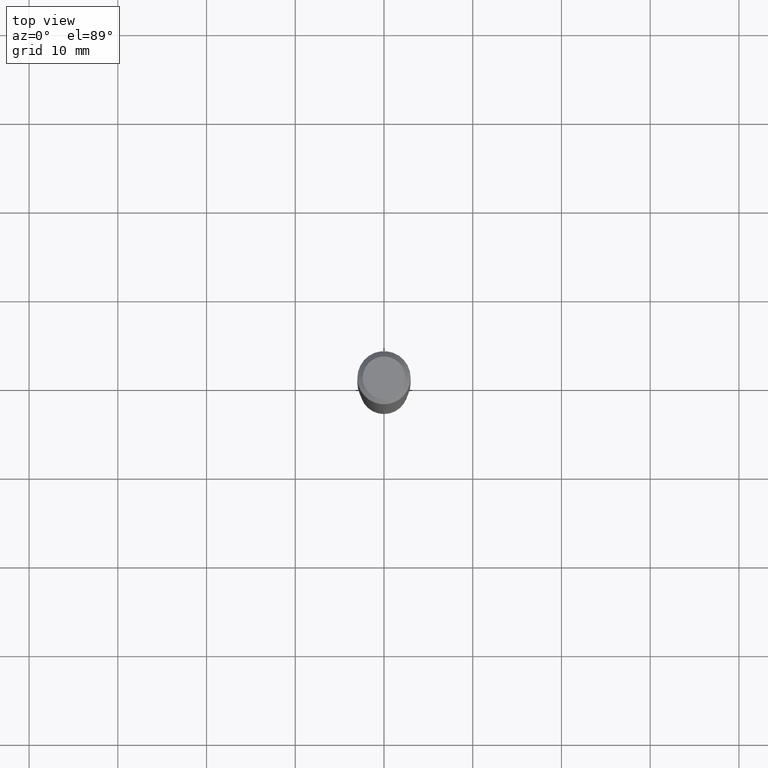
[diagram: clean part render]
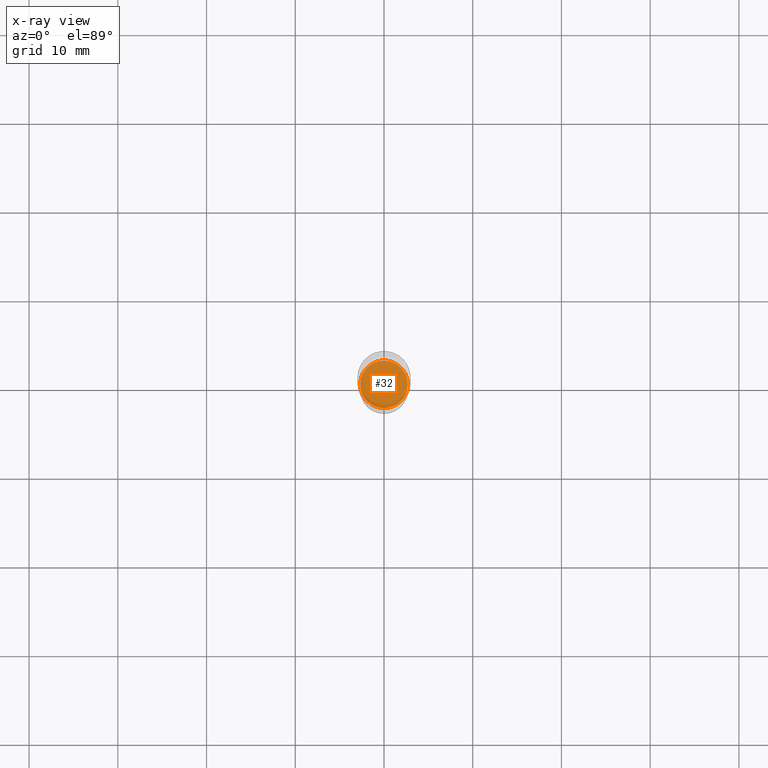
[diagram: x-ray — body ghosted, one internal face saturated and labeled with its STEP entity id]
A machine part, top view, then the same camera in x-ray: the body is ghosted and one INTERNAL B-rep face — a face not visible from any outside direction — is saturated and labeled: STEP entity #32.
In plain terms, the highlighted planar face has unit normal (-0, 0, 1).
Its self-contained STEP definition (entity closure, byte-faithful):
#32 = ADVANCED_FACE ( 'NONE', ( #139 ), #469, .F. ) ;
#34 = AXIS2_PLACEMENT_3D ( 'NONE', #209, #179, #341 ) ;
#45 = CARTESIAN_POINT ( 'NONE',  ( 4.178328002247924925E-29, -5.965545015547399442E-15, -1.708600000000000119 ) ) ;
#63 = EDGE_LOOP ( 'NONE', ( #140, #478 ) ) ;
#71 = CIRCLE ( 'NONE', #240, 0.1058000000000000052 ) ;
#75 = CARTESIAN_POINT ( 'NONE',  ( 0.1058000000000000052, -6.704342466846605785E-15, -1.708600000000000119 ) ) ;
#98 = VERTEX_POINT ( 'NONE', #326 ) ;
#124 = DIRECTION ( 'NONE',  ( 1.000000000000000000, -6.982962677686264344E-15, 0.000000000000000000 ) ) ;
#125 = EDGE_CURVE ( 'NONE', #231, #98, #239, .T. ) ;
#139 = FACE_OUTER_BOUND ( 'NONE', #63, .T. ) ;
#140 = ORIENTED_EDGE ( 'NONE', *, *, #125, .F. ) ;
#179 = DIRECTION ( 'NONE',  ( -2.445468806185136597E-29, 3.491481338843145583E-15, 1.000000000000000000 ) ) ;
#196 = DIRECTION ( 'NONE',  ( -2.445468806185136597E-29, 3.491481338843145583E-15, 1.000000000000000000 ) ) ;
#209 = CARTESIAN_POINT ( 'NONE',  ( 4.178328002247924925E-29, -5.965545015547399442E-15, -1.708600000000000119 ) ) ;
#231 = VERTEX_POINT ( 'NONE', #75 ) ;
#239 = CIRCLE ( 'NONE', #34, 0.1058000000000000052 ) ;
#240 = AXIS2_PLACEMENT_3D ( 'NONE', #45, #196, #124 ) ;
#245 = DIRECTION ( 'NONE',  ( -2.438088387897960049E-29, 3.491481338843145188E-15, 1.000000000000000000 ) ) ;
#250 = EDGE_CURVE ( 'NONE', #98, #231, #71, .T. ) ;
#283 = DIRECTION ( 'NONE',  ( 1.000000000000000000, -6.982962677686265922E-15, 4.876176775795935793E-29 ) ) ;
#320 = CARTESIAN_POINT ( 'NONE',  ( 4.178328002247924925E-29, -5.965545015547399442E-15, -1.708600000000000119 ) ) ;
#326 = CARTESIAN_POINT ( 'NONE',  ( -0.1058000000000000052, -5.211141573939102208E-15, -1.708600000000000119 ) ) ;
#341 = DIRECTION ( 'NONE',  ( 1.000000000000000000, -6.982962677686264344E-15, 0.000000000000000000 ) ) ;
#436 = AXIS2_PLACEMENT_3D ( 'NONE', #320, #245, #283 ) ;
#469 = PLANE ( 'NONE',  #436 ) ;
#478 = ORIENTED_EDGE ( 'NONE', *, *, #250, .F. ) ;